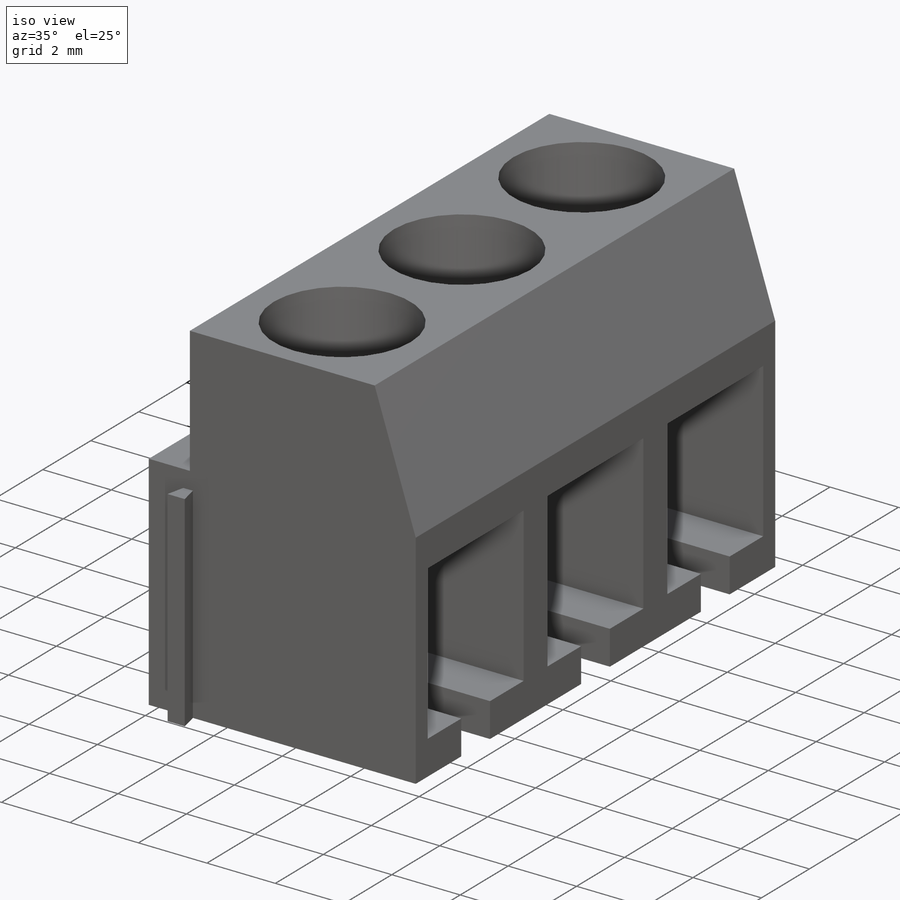
[diagram: iso view]
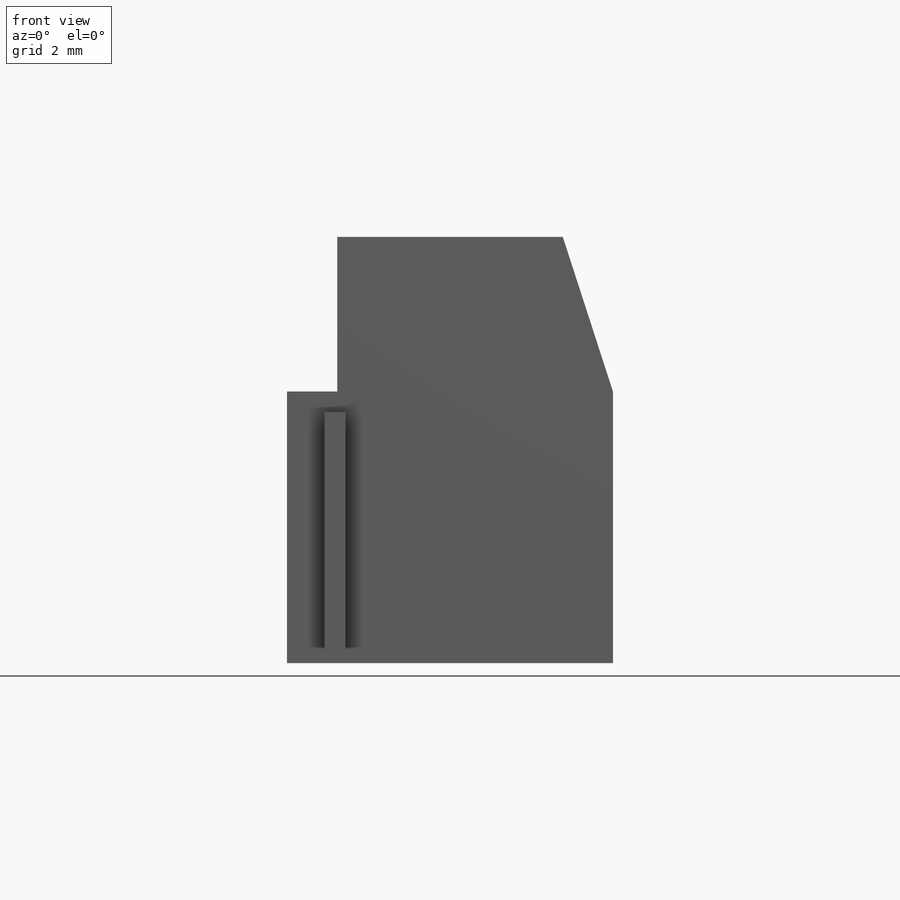
[diagram: front view]
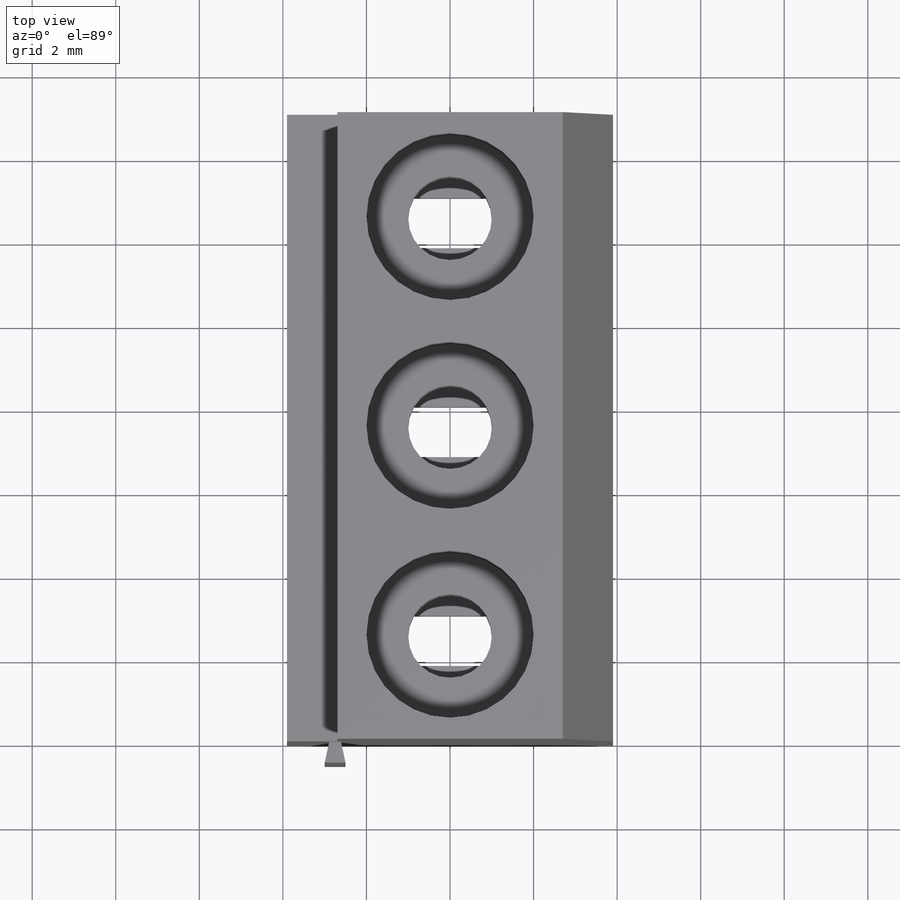
[diagram: top view]
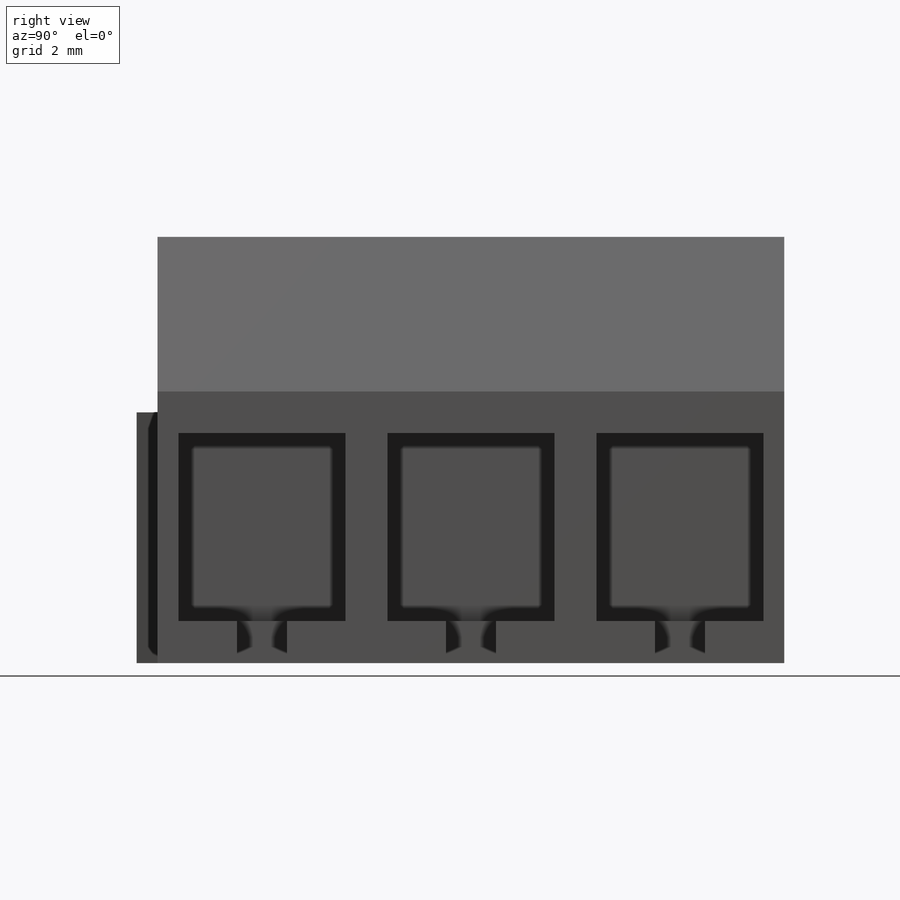
[diagram: right view]
SOLIDWORKS PART (.sldprt)
format: sldprt  version: not decoded by parser v0  size: 352,768 bytes
history: native  units: mm
features: sketch x9, cut_extrude x6, extrude x3, material x1, pattern_linear x1 (+13 scaffold rows collapsed)
feature tree (33):
  scaffold x13  (default folders/planes/origin — collapsed)
  material  "ABS"
  sketch  "Sketch1"  dims[c1.D1=~75.603138mm c1.D2=~52.434435mm c2.D1=10.2mm c2.D2=7.85mm c2.D3=1.2mm c2.D4=3.22mm c2.D5=3.5mm c3.D2=7.8mm c3.D5=1.2mm c3.D4=6.5mm]
  extrude  "Boss-Extrude1"  Depth=15mm
  sketch  "Sketch3"  dims[D1=4.0mm D2=5.0mm D3=5.0mm D4=2.5mm]
  cut_extrude  "Cut-Extrude2"  Depth=2.5mm
  sketch  "Sketch4"  dims[D1=2.0mm]
  cut_extrude  "Cut-Extrude3"  Depth=3mm
  sketch  "Sketch2"  dims[c1.D1=~6.037763mm c1.D2=~2.826187mm c2.D1=~6.037763mm c2.D2=~3.006035mm c3.D1=~5.80653mm c3.D2=~4.213588mm c4.D1=0.5mm c4.D2=0.5mm c4.D3=0.87mm c4.D4=0.87mm c4.D5=0.67mm c4.D6=0.1mm c5.D1=4.0mm c5.D2=4.5mm c5.D3=2.5mm c5.D4=1.2mm c5.D5=2.0mm]
  cut_extrude  "Cut-Extrude1"  Depth=6mm
  sketch  "Sketch5"  dims[D1=1.2mm D2=2.0mm]
  cut_extrude  "Cut-Extrude4"  Depth=5.2mm
  sketch  "Sketch6"  dims[D1=0.5mm D2=0.3mm D3=0.5mm]
  extrude  "Boss-Extrude2"  Depth=0.5mm
  sketch  "Sketch7"  dims[D1=0.5mm D2=0.3mm D3=0.5mm]
  cut_extrude  "Cut-Extrude5"  Depth=0.5mm
  pattern_linear  "LPattern1"  Count1=3 Count2=1 Spacing1=5mm Spacing2=10mm
  sketch  "Sketch8"  dims[D1=0.11mm]
  cut_extrude  "Cut-Extrude6"  Depth=10mm
  sketch  "Sketch9"  dims[D1=0.11mm]
  extrude  "Boss-Extrude3"  [1 undecoded]
decode coverage: 18 of 19 modeling features carry decoded parameters
note: ~ marks probable driven/reference dimensions
note: 1 parameter value undecoded
note: suppression state not decoded; provenance and decode notes live in map.json
